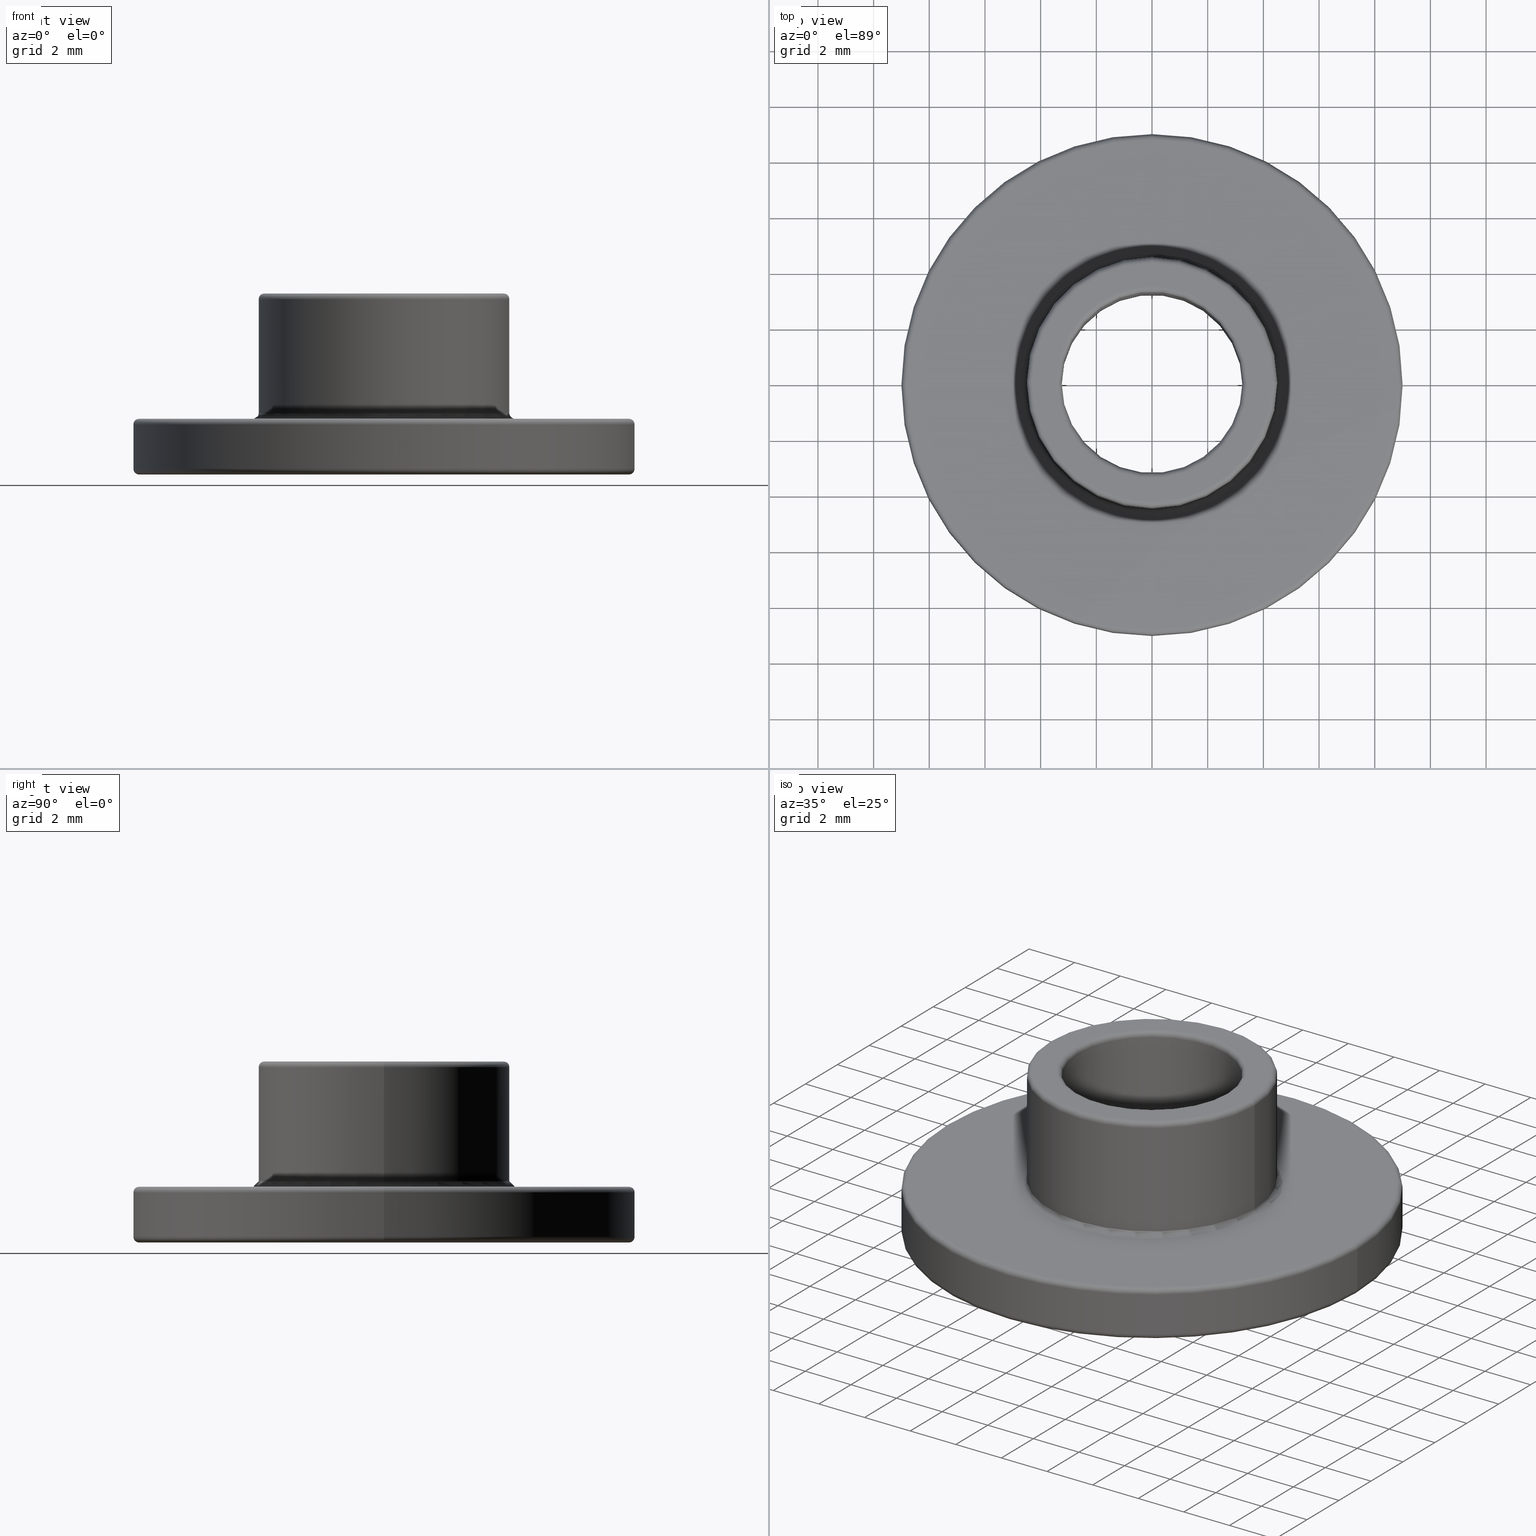
[diagram: canonical four-view strip — front | top / right | iso, engineering-drawing reading convention]
A machine part, canonical four-view strip (front | top / right | iso — engineering-drawing reading convention). The complete STEP part file that produces these views, byte-faithful:
ISO-10303-21;
HEADER;
/* Generated by software containing ST-Developer
 * from STEP Tools, Inc. (www.steptools.com) 
 */

FILE_DESCRIPTION(
/* description */ ('TAPPO \X\D8 6,5 INOX   '),
/* implementation_level */ '2;1');

FILE_NAME(
/* name */ 
'Q:\\Catalogo\\2_Accessori Dierre\\Per Download Web\\CATALOGO ACCESSOR
I PER RIPARI\\PAGINA 72\\DTPXX0000022.stp',
/* time_stamp */ '2018-01-30T15:27:29+01:00',
/* author */ ('fzagni'),
/* organization */ (''),
/* preprocessor_version */ 'ST-DEVELOPER v16.1',
/* originating_system */ 'Autodesk Inventor 2016',
/* authorisation */ '');

FILE_SCHEMA (('AUTOMOTIVE_DESIGN { 1 0 10303 214 3 1 1 }'));
ENDSEC;

DATA;
#10=MECHANICAL_DESIGN_GEOMETRIC_PRESENTATION_REPRESENTATION('',(#13),#263);
#11=SHAPE_REPRESENTATION_RELATIONSHIP('SRR','None',#272,#12);
#12=ADVANCED_BREP_SHAPE_REPRESENTATION('',(#14),#262);
#13=STYLED_ITEM('',(#281),#14);
#14=MANIFOLD_SOLID_BREP('Solido1',#147);
#15=CYLINDRICAL_SURFACE('',#154,3.25);
#16=CYLINDRICAL_SURFACE('',#159,4.5);
#17=CYLINDRICAL_SURFACE('',#165,9.);
#18=PLANE('',#152);
#19=PLANE('',#161);
#20=PLANE('',#169);
#21=FACE_BOUND('',#46,.T.);
#22=FACE_BOUND('',#48,.T.);
#23=FACE_BOUND('',#50,.T.);
#24=FACE_BOUND('',#52,.T.);
#25=FACE_BOUND('',#54,.T.);
#26=FACE_BOUND('',#56,.T.);
#27=FACE_BOUND('',#58,.T.);
#28=FACE_BOUND('',#60,.T.);
#29=FACE_BOUND('',#62,.T.);
#30=FACE_BOUND('',#64,.T.);
#31=FACE_BOUND('',#66,.T.);
#32=FACE_BOUND('',#68,.T.);
#33=FACE_OUTER_BOUND('',#45,.T.);
#34=FACE_OUTER_BOUND('',#47,.T.);
#35=FACE_OUTER_BOUND('',#49,.T.);
#36=FACE_OUTER_BOUND('',#51,.T.);
#37=FACE_OUTER_BOUND('',#53,.T.);
#38=FACE_OUTER_BOUND('',#55,.T.);
#39=FACE_OUTER_BOUND('',#57,.T.);
#40=FACE_OUTER_BOUND('',#59,.T.);
#41=FACE_OUTER_BOUND('',#61,.T.);
#42=FACE_OUTER_BOUND('',#63,.T.);
#43=FACE_OUTER_BOUND('',#65,.T.);
#44=FACE_OUTER_BOUND('',#67,.T.);
#45=EDGE_LOOP('',(#105));
#46=EDGE_LOOP('',(#106));
#47=EDGE_LOOP('',(#107));
#48=EDGE_LOOP('',(#108));
#49=EDGE_LOOP('',(#109));
#50=EDGE_LOOP('',(#110));
#51=EDGE_LOOP('',(#111));
#52=EDGE_LOOP('',(#112));
#53=EDGE_LOOP('',(#113));
#54=EDGE_LOOP('',(#114));
#55=EDGE_LOOP('',(#115));
#56=EDGE_LOOP('',(#116));
#57=EDGE_LOOP('',(#117));
#58=EDGE_LOOP('',(#118));
#59=EDGE_LOOP('',(#119));
#60=EDGE_LOOP('',(#120));
#61=EDGE_LOOP('',(#121));
#62=EDGE_LOOP('',(#122));
#63=EDGE_LOOP('',(#123));
#64=EDGE_LOOP('',(#124));
#65=EDGE_LOOP('',(#125));
#66=EDGE_LOOP('',(#126));
#67=EDGE_LOOP('',(#127));
#68=EDGE_LOOP('',(#128));
#69=CIRCLE('',#150,3.25);
#70=CIRCLE('',#151,3.45);
#71=CIRCLE('',#153,8.8);
#72=CIRCLE('',#155,3.25);
#73=CIRCLE('',#157,4.5);
#74=CIRCLE('',#158,4.7);
#75=CIRCLE('',#160,4.5);
#76=CIRCLE('',#162,8.8);
#77=CIRCLE('',#164,9.);
#78=CIRCLE('',#166,9.);
#79=CIRCLE('',#168,3.45);
#80=CIRCLE('',#170,4.3);
#81=VERTEX_POINT('',#225);
#82=VERTEX_POINT('',#227);
#83=VERTEX_POINT('',#230);
#84=VERTEX_POINT('',#233);
#85=VERTEX_POINT('',#236);
#86=VERTEX_POINT('',#238);
#87=VERTEX_POINT('',#241);
#88=VERTEX_POINT('',#244);
#89=VERTEX_POINT('',#247);
#90=VERTEX_POINT('',#250);
#91=VERTEX_POINT('',#253);
#92=VERTEX_POINT('',#256);
#93=EDGE_CURVE('',#81,#81,#69,.T.);
#94=EDGE_CURVE('',#82,#82,#70,.T.);
#95=EDGE_CURVE('',#83,#83,#71,.T.);
#96=EDGE_CURVE('',#84,#84,#72,.T.);
#97=EDGE_CURVE('',#85,#85,#73,.T.);
#98=EDGE_CURVE('',#86,#86,#74,.T.);
#99=EDGE_CURVE('',#87,#87,#75,.T.);
#100=EDGE_CURVE('',#88,#88,#76,.T.);
#101=EDGE_CURVE('',#89,#89,#77,.T.);
#102=EDGE_CURVE('',#90,#90,#78,.T.);
#103=EDGE_CURVE('',#91,#91,#79,.T.);
#104=EDGE_CURVE('',#92,#92,#80,.T.);
#105=ORIENTED_EDGE('',*,*,#93,.T.);
#106=ORIENTED_EDGE('',*,*,#94,.T.);
#107=ORIENTED_EDGE('',*,*,#95,.F.);
#108=ORIENTED_EDGE('',*,*,#94,.F.);
#109=ORIENTED_EDGE('',*,*,#96,.F.);
#110=ORIENTED_EDGE('',*,*,#93,.F.);
#111=ORIENTED_EDGE('',*,*,#97,.T.);
#112=ORIENTED_EDGE('',*,*,#98,.T.);
#113=ORIENTED_EDGE('',*,*,#99,.F.);
#114=ORIENTED_EDGE('',*,*,#97,.F.);
#115=ORIENTED_EDGE('',*,*,#100,.F.);
#116=ORIENTED_EDGE('',*,*,#98,.F.);
#117=ORIENTED_EDGE('',*,*,#101,.T.);
#118=ORIENTED_EDGE('',*,*,#95,.T.);
#119=ORIENTED_EDGE('',*,*,#102,.F.);
#120=ORIENTED_EDGE('',*,*,#101,.F.);
#121=ORIENTED_EDGE('',*,*,#96,.T.);
#122=ORIENTED_EDGE('',*,*,#103,.T.);
#123=ORIENTED_EDGE('',*,*,#104,.F.);
#124=ORIENTED_EDGE('',*,*,#103,.F.);
#125=ORIENTED_EDGE('',*,*,#99,.T.);
#126=ORIENTED_EDGE('',*,*,#104,.T.);
#127=ORIENTED_EDGE('',*,*,#100,.T.);
#128=ORIENTED_EDGE('',*,*,#102,.T.);
#129=TOROIDAL_SURFACE('',#149,3.45,0.2);
#130=TOROIDAL_SURFACE('',#156,4.7,0.2);
#131=TOROIDAL_SURFACE('',#163,8.8,0.2);
#132=TOROIDAL_SURFACE('',#167,3.45,0.2);
#133=TOROIDAL_SURFACE('',#171,4.3,0.2);
#134=TOROIDAL_SURFACE('',#172,8.8,0.2);
#135=ADVANCED_FACE('',(#33,#21),#129,.T.);
#136=ADVANCED_FACE('',(#34,#22),#18,.F.);
#137=ADVANCED_FACE('',(#35,#23),#15,.F.);
#138=ADVANCED_FACE('',(#36,#24),#130,.F.);
#139=ADVANCED_FACE('',(#37,#25),#16,.T.);
#140=ADVANCED_FACE('',(#38,#26),#19,.T.);
#141=ADVANCED_FACE('',(#39,#27),#131,.T.);
#142=ADVANCED_FACE('',(#40,#28),#17,.T.);
#143=ADVANCED_FACE('',(#41,#29),#132,.T.);
#144=ADVANCED_FACE('',(#42,#30),#20,.T.);
#145=ADVANCED_FACE('',(#43,#31),#133,.T.);
#146=ADVANCED_FACE('',(#44,#32),#134,.T.);
#147=CLOSED_SHELL('',(#135,#136,#137,#138,#139,#140,#141,#142,#143,#144,
#145,#146));
#148=AXIS2_PLACEMENT_3D('placement',#223,#173,#174);
#149=AXIS2_PLACEMENT_3D('',#224,#175,#176);
#150=AXIS2_PLACEMENT_3D('',#226,#177,#178);
#151=AXIS2_PLACEMENT_3D('',#228,#179,#180);
#152=AXIS2_PLACEMENT_3D('',#229,#181,#182);
#153=AXIS2_PLACEMENT_3D('',#231,#183,#184);
#154=AXIS2_PLACEMENT_3D('',#232,#185,#186);
#155=AXIS2_PLACEMENT_3D('',#234,#187,#188);
#156=AXIS2_PLACEMENT_3D('',#235,#189,#190);
#157=AXIS2_PLACEMENT_3D('',#237,#191,#192);
#158=AXIS2_PLACEMENT_3D('',#239,#193,#194);
#159=AXIS2_PLACEMENT_3D('',#240,#195,#196);
#160=AXIS2_PLACEMENT_3D('',#242,#197,#198);
#161=AXIS2_PLACEMENT_3D('',#243,#199,#200);
#162=AXIS2_PLACEMENT_3D('',#245,#201,#202);
#163=AXIS2_PLACEMENT_3D('',#246,#203,#204);
#164=AXIS2_PLACEMENT_3D('',#248,#205,#206);
#165=AXIS2_PLACEMENT_3D('',#249,#207,#208);
#166=AXIS2_PLACEMENT_3D('',#251,#209,#210);
#167=AXIS2_PLACEMENT_3D('',#252,#211,#212);
#168=AXIS2_PLACEMENT_3D('',#254,#213,#214);
#169=AXIS2_PLACEMENT_3D('',#255,#215,#216);
#170=AXIS2_PLACEMENT_3D('',#257,#217,#218);
#171=AXIS2_PLACEMENT_3D('',#258,#219,#220);
#172=AXIS2_PLACEMENT_3D('',#259,#221,#222);
#173=DIRECTION('axis',(0.,0.,1.));
#174=DIRECTION('refdir',(1.,0.,0.));
#175=DIRECTION('center_axis',(0.,0.,1.));
#176=DIRECTION('ref_axis',(1.,0.,0.));
#177=DIRECTION('center_axis',(0.,0.,1.));
#178=DIRECTION('ref_axis',(1.,0.,0.));
#179=DIRECTION('center_axis',(0.,0.,-1.));
#180=DIRECTION('ref_axis',(1.,0.,0.));
#181=DIRECTION('center_axis',(0.,0.,1.));
#182=DIRECTION('ref_axis',(1.,0.,0.));
#183=DIRECTION('center_axis',(0.,0.,1.));
#184=DIRECTION('ref_axis',(-1.,0.,0.));
#185=DIRECTION('center_axis',(0.,0.,1.));
#186=DIRECTION('ref_axis',(1.,0.,0.));
#187=DIRECTION('center_axis',(0.,0.,-1.));
#188=DIRECTION('ref_axis',(-1.,-1.22464679914735E-16,0.));
#189=DIRECTION('center_axis',(0.,0.,-1.));
#190=DIRECTION('ref_axis',(-1.,0.,0.));
#191=DIRECTION('center_axis',(0.,0.,-1.));
#192=DIRECTION('ref_axis',(-1.,0.,0.));
#193=DIRECTION('center_axis',(0.,0.,1.));
#194=DIRECTION('ref_axis',(-1.,0.,0.));
#195=DIRECTION('center_axis',(0.,0.,1.));
#196=DIRECTION('ref_axis',(-1.,0.,0.));
#197=DIRECTION('center_axis',(0.,0.,1.));
#198=DIRECTION('ref_axis',(-1.,0.,0.));
#199=DIRECTION('center_axis',(0.,0.,1.));
#200=DIRECTION('ref_axis',(1.,0.,0.));
#201=DIRECTION('center_axis',(0.,0.,-1.));
#202=DIRECTION('ref_axis',(-1.,0.,0.));
#203=DIRECTION('center_axis',(0.,0.,-1.));
#204=DIRECTION('ref_axis',(-1.,0.,0.));
#205=DIRECTION('center_axis',(0.,0.,-1.));
#206=DIRECTION('ref_axis',(-1.,0.,0.));
#207=DIRECTION('center_axis',(0.,0.,-1.));
#208=DIRECTION('ref_axis',(-1.,0.,0.));
#209=DIRECTION('center_axis',(0.,0.,1.));
#210=DIRECTION('ref_axis',(-1.,0.,0.));
#211=DIRECTION('center_axis',(0.,0.,-1.));
#212=DIRECTION('ref_axis',(-1.,0.,0.));
#213=DIRECTION('center_axis',(0.,0.,1.));
#214=DIRECTION('ref_axis',(-1.,-1.22464679914735E-16,0.));
#215=DIRECTION('center_axis',(0.,0.,1.));
#216=DIRECTION('ref_axis',(1.,0.,0.));
#217=DIRECTION('center_axis',(0.,0.,-1.));
#218=DIRECTION('ref_axis',(-1.,0.,0.));
#219=DIRECTION('center_axis',(0.,0.,1.));
#220=DIRECTION('ref_axis',(1.,0.,0.));
#221=DIRECTION('center_axis',(0.,0.,-1.));
#222=DIRECTION('ref_axis',(-1.,0.,0.));
#223=CARTESIAN_POINT('',(0.,0.,0.));
#224=CARTESIAN_POINT('Origin',(0.,0.,-1.8));
#225=CARTESIAN_POINT('',(-3.25,-3.9801020972289E-16,-1.8));
#226=CARTESIAN_POINT('Origin',(0.,0.,-1.8));
#227=CARTESIAN_POINT('',(-3.45,4.22503145705837E-16,-2.));
#228=CARTESIAN_POINT('Origin',(0.,0.,-2.));
#229=CARTESIAN_POINT('Origin',(-5.03042222760184E-16,2.05596856412066E-16,
-2.));
#230=CARTESIAN_POINT('',(8.8,1.07768918324967E-15,-2.));
#231=CARTESIAN_POINT('Origin',(0.,0.,-2.));
#232=CARTESIAN_POINT('Origin',(0.,0.,-21.7726093108393));
#233=CARTESIAN_POINT('',(3.25,0.,4.3));
#234=CARTESIAN_POINT('Origin',(0.,0.,4.3));
#235=CARTESIAN_POINT('Origin',(0.,0.,0.2));
#236=CARTESIAN_POINT('',(4.5,-5.51091059616309E-16,0.2));
#237=CARTESIAN_POINT('Origin',(0.,0.,0.2));
#238=CARTESIAN_POINT('',(4.7,5.75583995599256E-16,0.));
#239=CARTESIAN_POINT('Origin',(0.,0.,0.));
#240=CARTESIAN_POINT('Origin',(0.,0.,0.));
#241=CARTESIAN_POINT('',(4.5,5.51091059616309E-16,4.3));
#242=CARTESIAN_POINT('Origin',(0.,0.,4.3));
#243=CARTESIAN_POINT('Origin',(-5.03042222760184E-16,2.05596856412066E-16,
0.));
#244=CARTESIAN_POINT('',(8.8,-1.07768918324967E-15,0.));
#245=CARTESIAN_POINT('Origin',(0.,0.,0.));
#246=CARTESIAN_POINT('Origin',(0.,0.,-1.8));
#247=CARTESIAN_POINT('',(9.,-1.10218211923262E-15,-1.8));
#248=CARTESIAN_POINT('Origin',(0.,0.,-1.8));
#249=CARTESIAN_POINT('Origin',(0.,0.,0.));
#250=CARTESIAN_POINT('',(9.,1.10218211923262E-15,-0.2));
#251=CARTESIAN_POINT('Origin',(0.,0.,-0.2));
#252=CARTESIAN_POINT('Origin',(0.,0.,4.3));
#253=CARTESIAN_POINT('',(3.45,8.45006291411674E-16,4.5));
#254=CARTESIAN_POINT('Origin',(0.,0.,4.5));
#255=CARTESIAN_POINT('Origin',(-2.51521111380092E-16,1.02798428206033E-16,
4.5));
#256=CARTESIAN_POINT('',(4.3,-5.26598123633362E-16,4.5));
#257=CARTESIAN_POINT('Origin',(0.,0.,4.5));
#258=CARTESIAN_POINT('Origin',(0.,0.,4.3));
#259=CARTESIAN_POINT('Origin',(0.,0.,-0.2));
#260=UNCERTAINTY_MEASURE_WITH_UNIT(LENGTH_MEASURE(0.01),#264,
'DISTANCE_ACCURACY_VALUE',
'Maximum model space distance between geometric entities at asserted c
onnectivities');
#261=UNCERTAINTY_MEASURE_WITH_UNIT(LENGTH_MEASURE(1.E-6),#264,
'DISTANCE_ACCURACY_VALUE',
'Maximum model space distance between geometric entities at asserted c
onnectivities');
#262=(
GEOMETRIC_REPRESENTATION_CONTEXT(3)
GLOBAL_UNCERTAINTY_ASSIGNED_CONTEXT((#260))
GLOBAL_UNIT_ASSIGNED_CONTEXT((#264,#267,#265))
REPRESENTATION_CONTEXT('','3D')
);
#263=(
GEOMETRIC_REPRESENTATION_CONTEXT(3)
GLOBAL_UNCERTAINTY_ASSIGNED_CONTEXT((#261))
GLOBAL_UNIT_ASSIGNED_CONTEXT((#264,#267,#265))
REPRESENTATION_CONTEXT('','3D')
);
#264=(
LENGTH_UNIT()
NAMED_UNIT(*)
SI_UNIT(.MILLI.,.METRE.)
);
#265=(
NAMED_UNIT(*)
SI_UNIT($,.STERADIAN.)
SOLID_ANGLE_UNIT()
);
#266=DIMENSIONAL_EXPONENTS(0.,0.,0.,0.,0.,0.,0.);
#267=(
CONVERSION_BASED_UNIT('degree',#269)
NAMED_UNIT(#266)
PLANE_ANGLE_UNIT()
);
#268=(
NAMED_UNIT(*)
PLANE_ANGLE_UNIT()
SI_UNIT($,.RADIAN.)
);
#269=PLANE_ANGLE_MEASURE_WITH_UNIT(PLANE_ANGLE_MEASURE(0.01745329252),#268);
#270=SHAPE_DEFINITION_REPRESENTATION(#271,#272);
#271=PRODUCT_DEFINITION_SHAPE('',$,#274);
#272=SHAPE_REPRESENTATION('',(#148),#262);
#273=PRODUCT_DEFINITION_CONTEXT('part definition',#278,'design');
#274=PRODUCT_DEFINITION('XT90150','XT90150',#275,#273);
#275=PRODUCT_DEFINITION_FORMATION('','A',#280);
#276=PRODUCT_RELATED_PRODUCT_CATEGORY('XT90150','XT90150',(#280));
#277=APPLICATION_PROTOCOL_DEFINITION('international standard',
'automotive_design',2009,#278);
#278=APPLICATION_CONTEXT(
'Core Data for Automotive Mechanical Design Process');
#279=PRODUCT_CONTEXT('part definition',#278,'mechanical');
#280=PRODUCT('XT90150','XT90150',$,(#279));
#281=PRESENTATION_STYLE_ASSIGNMENT((#282));
#282=SURFACE_STYLE_USAGE(.BOTH.,#283);
#283=SURFACE_SIDE_STYLE('',(#284));
#284=SURFACE_STYLE_FILL_AREA(#285);
#285=FILL_AREA_STYLE('',(#286));
#286=FILL_AREA_STYLE_COLOUR('',#287);
#287=COLOUR_RGB('',0.745098039215686,0.737254901960784,0.729411764705882);
ENDSEC;
END-ISO-10303-21;
